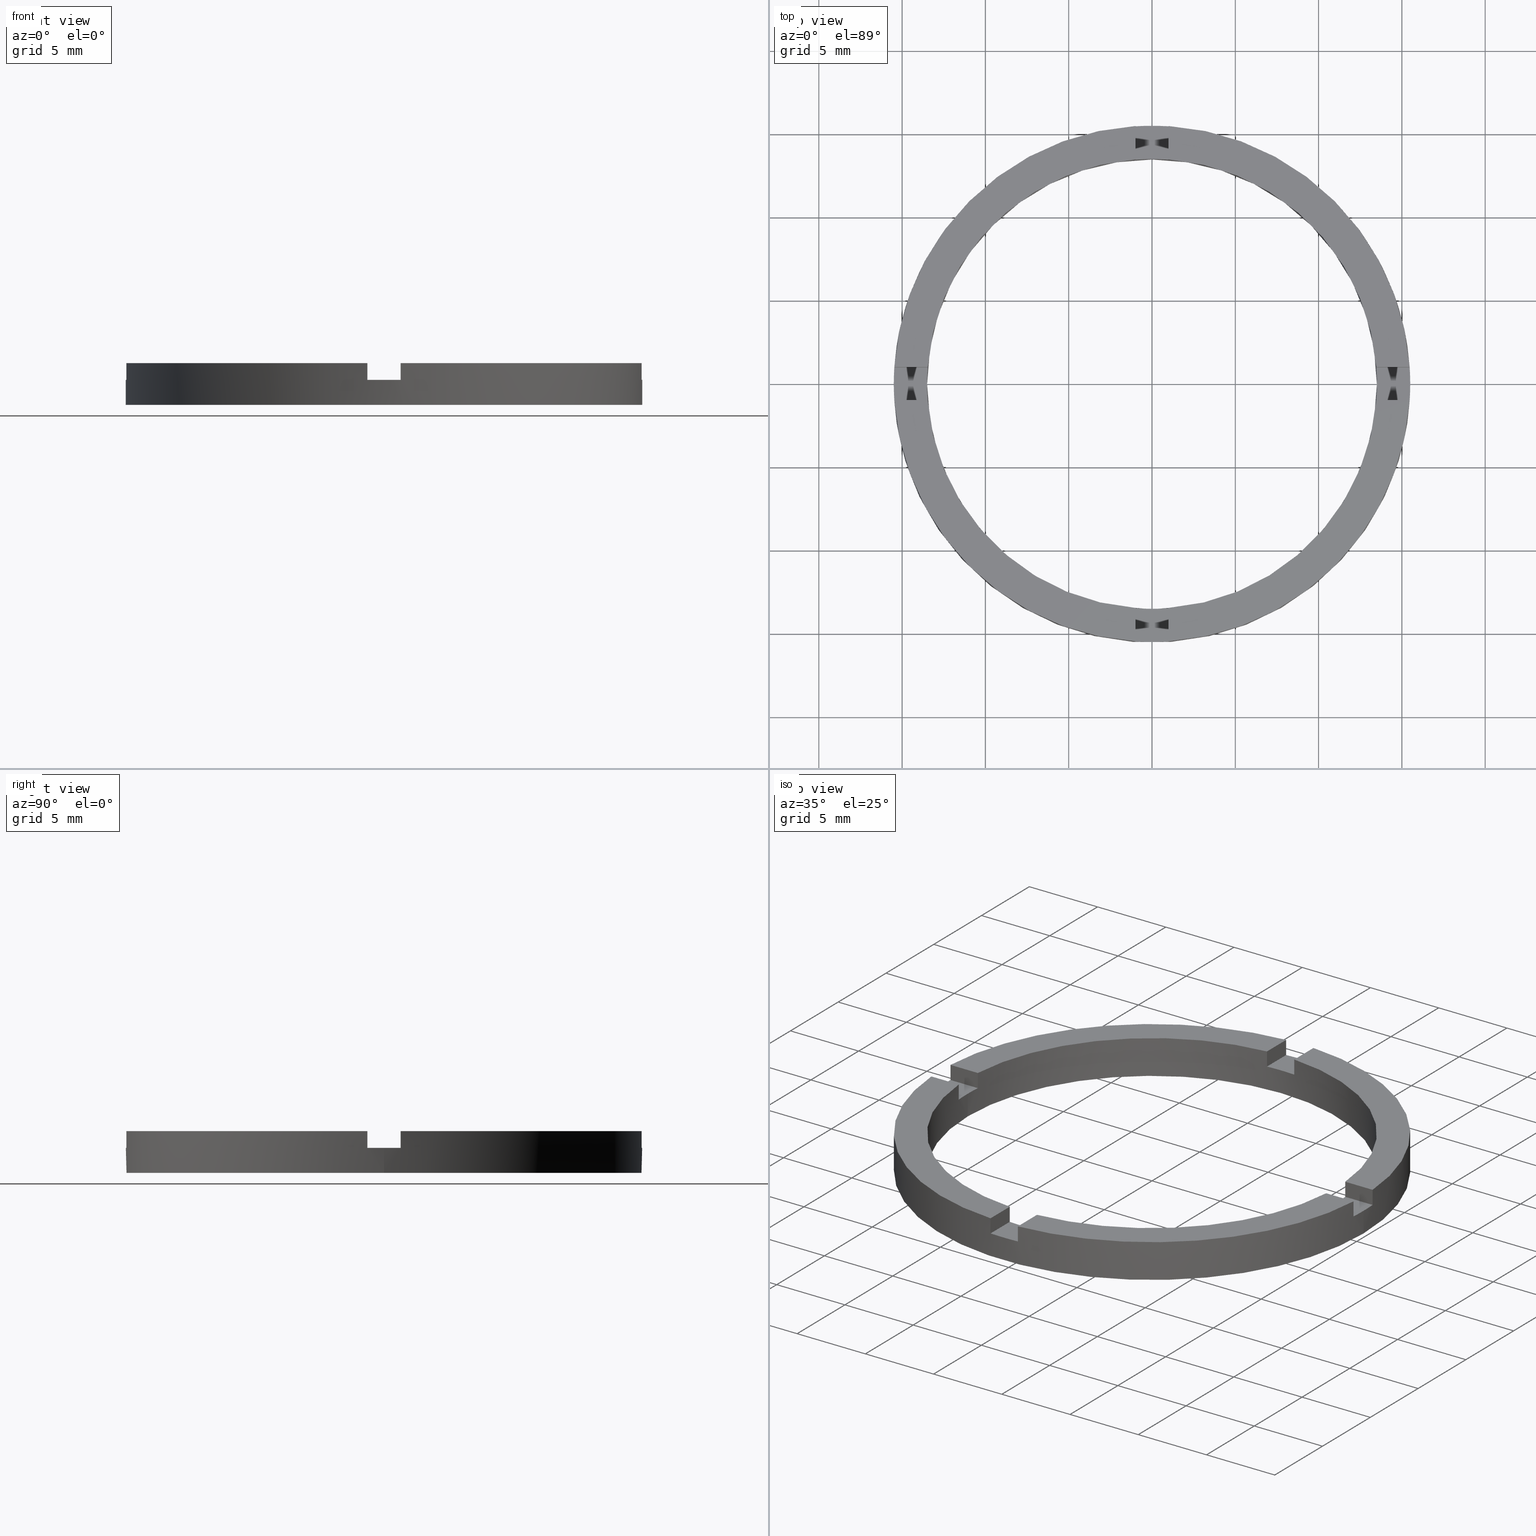
[diagram: canonical four-view strip — front | top / right | iso, engineering-drawing reading convention]
A machine part, canonical four-view strip (front | top / right | iso — engineering-drawing reading convention). The complete STEP part file that produces these views, byte-faithful:
ISO-10303-21;
HEADER;
FILE_DESCRIPTION (( 'STEP AP203' ),
    '1' );
FILE_NAME ('514069.step',
    '2024-12-26T02:34:36',
    ( 'MSI' ),
    ( '' ),
    'SwSTEP 2.0',
    'SolidWorks 2020',
    '' );
FILE_SCHEMA (( 'CONFIG_CONTROL_DESIGN' ));
ENDSEC;

DATA;
#1 = LINE ( 'NONE', #296, #528 ) ;
#2 = VECTOR ( 'NONE', #37, 1000.000000000000000 ) ;
#3 = CARTESIAN_POINT ( 'NONE',  ( -1.000000000000024869, 15.46770829825801741, 2.500000000000000000 ) ) ;
#4 = VECTOR ( 'NONE', #183, 1000.000000000000000 ) ;
#5 = CARTESIAN_POINT ( 'NONE',  ( 13.50000000000000000, 1.653273178848926867E-15, 2.500000000000000000 ) ) ;
#6 = CIRCLE ( 'NONE', #447, 13.50000000000000000 ) ;
#7 = VECTOR ( 'NONE', #519, 1000.000000000000000 ) ;
#8 = DIRECTION ( 'NONE',  ( -0.000000000000000000, -0.000000000000000000, -1.000000000000000000 ) ) ;
#9 = LINE ( 'NONE', #3, #2 ) ;
#10 = DIRECTION ( 'NONE',  ( -0.000000000000000000, -1.000000000000000000, -0.000000000000000000 ) ) ;
#11 = LINE ( 'NONE', #575, #534 ) ;
#12 = CARTESIAN_POINT ( 'NONE',  ( 13.46291201783624736, -1.000000000000159206, 2.500000000000000000 ) ) ;
#13 = FACE_OUTER_BOUND ( 'NONE', #340, .T. ) ;
#14 = AXIS2_PLACEMENT_3D ( 'NONE', #765, #489, #481 ) ;
#15 = CARTESIAN_POINT ( 'NONE',  ( 15.46770829825800853, -1.000000000000159206, 2.500000000000000000 ) ) ;
#16 = DIRECTION ( 'NONE',  ( 1.000000000000000000, 0.000000000000000000, 0.000000000000000000 ) ) ;
#17 = DIRECTION ( 'NONE',  ( -0.000000000000000000, -0.000000000000000000, -1.000000000000000000 ) ) ;
#18 = DIRECTION ( 'NONE',  ( -1.000000000000000000, -1.734723475976807094E-16, 0.000000000000000000 ) ) ;
#19 = PRODUCT_RELATED_PRODUCT_CATEGORY ( 'detail', '', ( #34 ) ) ;
#20 = CARTESIAN_POINT ( 'NONE',  ( -15.46770829825802096, 0.9999999999999767963, 1.500000000000000000 ) ) ;
#21 = AXIS2_PLACEMENT_3D ( 'NONE', #297, #579, #352 ) ;
#22 = DIRECTION ( 'NONE',  ( 0.000000000000000000, 0.000000000000000000, 1.000000000000000000 ) ) ;
#23 = DIRECTION ( 'NONE',  ( -0.000000000000000000, -0.000000000000000000, -1.000000000000000000 ) ) ;
#24 = CARTESIAN_POINT ( 'NONE',  ( -13.46291201783625802, -1.000000000000023093, 2.500000000000000000 ) ) ;
#25 = CARTESIAN_POINT ( 'NONE',  ( 5.499999999999994671, 0.9999999999998404610, 2.500000000000000000 ) ) ;
#26 = ADVANCED_FACE ( 'NONE', ( #112 ), #207, .T. ) ;
#27 = DIRECTION ( 'NONE',  ( 1.000000000000000000, 4.336808689942017736E-17, 0.000000000000000000 ) ) ;
#28 = EDGE_CURVE ( 'NONE', #708, #363, #389, .T. ) ;
#29 = DIRECTION ( 'NONE',  ( 1.000000000000000000, 1.734723475976807094E-16, -0.000000000000000000 ) ) ;
#30 = AXIS2_PLACEMENT_3D ( 'NONE', #200, #254, #428 ) ;
#31 = DIRECTION ( 'NONE',  ( 1.000000000000000000, -0.000000000000000000, 0.000000000000000000 ) ) ;
#32 = EDGE_CURVE ( 'NONE', #67, #351, #114, .T. ) ;
#33 = CC_DESIGN_SECURITY_CLASSIFICATION ( #63, ( #512 ) ) ;
#34 = PRODUCT ( '514069', '514069', '', ( #515 ) ) ;
#35 = COORDINATED_UNIVERSAL_TIME_OFFSET ( 8, 0, .AHEAD. ) ;
#36 = CALENDAR_DATE ( 2024, 26, 12 ) ;
#37 = DIRECTION ( 'NONE',  ( -0.000000000000000000, -0.000000000000000000, -1.000000000000000000 ) ) ;
#38 = SHAPE_DEFINITION_REPRESENTATION ( #637, #688 ) ;
#39 = DIRECTION ( 'NONE',  ( -0.000000000000000000, -0.000000000000000000, -1.000000000000000000 ) ) ;
#40 = DIRECTION ( 'NONE',  ( -0.000000000000000000, 0.000000000000000000, 1.000000000000000000 ) ) ;
#41 = DIRECTION ( 'NONE',  ( -1.000000000000000000, 0.000000000000000000, 0.000000000000000000 ) ) ;
#42 = PLANE ( 'NONE',  #78 ) ;
#43 = CARTESIAN_POINT ( 'NONE',  ( 0.000000000000000000, 0.000000000000000000, 0.000000000000000000 ) ) ;
#44 = APPROVAL_PERSON_ORGANIZATION ( #314, #542, #153 ) ;
#45 = DIRECTION ( 'NONE',  ( -1.000000000000000000, -4.336808689942017736E-17, -0.000000000000000000 ) ) ;
#46 = APPROVAL_DATE_TIME ( #568, #542 ) ;
#47 = CARTESIAN_POINT ( 'NONE',  ( 0.9999999999998359090, -5.500000000000180300, 1.500000000000000000 ) ) ;
#48 = PERSON_AND_ORGANIZATION ( #82, #671 ) ;
#49 = CARTESIAN_POINT ( 'NONE',  ( 0.000000000000000000, 0.000000000000000000, 0.000000000000000000 ) ) ;
#50 = EDGE_CURVE ( 'NONE', #144, #79, #639, .T. ) ;
#51 = CALENDAR_DATE ( 2024, 26, 12 ) ;
#52 = DIRECTION ( 'NONE',  ( 0.000000000000000000, 0.000000000000000000, 1.000000000000000000 ) ) ;
#53 = CARTESIAN_POINT ( 'NONE',  ( -13.46291201783626157, 0.9999999999999770184, 1.500000000000000000 ) ) ;
#54 = CARTESIAN_POINT ( 'NONE',  ( 0.000000000000000000, 0.000000000000000000, 1.500000000000000000 ) ) ;
#55 = AXIS2_PLACEMENT_3D ( 'NONE', #188, #578, #437 ) ;
#56 = PERSON_AND_ORGANIZATION_ROLE ( 'creator' ) ;
#57 = PLANE ( 'NONE',  #495 ) ;
#58 = CARTESIAN_POINT ( 'NONE',  ( 0.000000000000000000, 0.000000000000000000, 0.000000000000000000 ) ) ;
#59 = DIRECTION ( 'NONE',  ( 0.000000000000000000, 0.000000000000000000, 1.000000000000000000 ) ) ;
#60 = AXIS2_PLACEMENT_3D ( 'NONE', #110, #103, #204 ) ;
#61 = CARTESIAN_POINT ( 'NONE',  ( 0.000000000000000000, 0.000000000000000000, 1.500000000000000000 ) ) ;
#62 = PERSON_AND_ORGANIZATION_ROLE ( 'design_supplier' ) ;
#63 = SECURITY_CLASSIFICATION ( '', '', #609 ) ;
#64 = DIRECTION ( 'NONE',  ( -1.000000000000000000, -1.301042606982605321E-16, 0.000000000000000000 ) ) ;
#65 = DIRECTION ( 'NONE',  ( 1.000000000000000000, 0.000000000000000000, -0.000000000000000000 ) ) ;
#66 = CARTESIAN_POINT ( 'NONE',  ( -5.500000000000185629, 0.9999999999999785727, 1.500000000000000000 ) ) ;
#67 = VERTEX_POINT ( 'NONE', #350 ) ;
#68 = AXIS2_PLACEMENT_3D ( 'NONE', #236, #440, #573 ) ;
#69 = CARTESIAN_POINT ( 'NONE',  ( 0.000000000000000000, 0.000000000000000000, 0.000000000000000000 ) ) ;
#70 = EDGE_LOOP ( 'NONE', ( #681, #615, #680, #133 ) ) ;
#71 = EDGE_CURVE ( 'NONE', #177, #67, #394, .T. ) ;
#72 = ORIENTED_EDGE ( 'NONE', *, *, #194, .F. ) ;
#73 = EDGE_CURVE ( 'NONE', #453, #596, #266, .T. ) ;
#74 = ORIENTED_EDGE ( 'NONE', *, *, #295, .F. ) ;
#75 = CLOSED_SHELL ( 'NONE', ( #118, #612, #520, #678, #130, #600, #364, #710, #223, #139, #226, #307, #557, #472, #279, #751, #374, #323, #108, #318, #26 ) ) ;
#76 = DIRECTION ( 'NONE',  ( 0.000000000000000000, 0.000000000000000000, 1.000000000000000000 ) ) ;
#77 = ORIENTED_EDGE ( 'NONE', *, *, #441, .F. ) ;
#78 = AXIS2_PLACEMENT_3D ( 'NONE', #736, #40, #497 ) ;
#79 = VERTEX_POINT ( 'NONE', #173 ) ;
#80 = ORIENTED_EDGE ( 'NONE', *, *, #263, .T. ) ;
#81 = ORIENTED_EDGE ( 'NONE', *, *, #553, .F. ) ;
#82 = PERSON ( 'δָ��', 'δָ��', 'δָ��', ('δָ��'), ('δָ��'), ('δָ��') ) ;
#83 = ORIENTED_EDGE ( 'NONE', *, *, #263, .F. ) ;
#84 = CARTESIAN_POINT ( 'NONE',  ( 0.000000000000000000, 0.000000000000000000, 1.500000000000000000 ) ) ;
#85 = VERTEX_POINT ( 'NONE', #101 ) ;
#86 = VERTEX_POINT ( 'NONE', #197 ) ;
#87 = EDGE_CURVE ( 'NONE', #85, #657, #277, .T. ) ;
#88 = ORIENTED_EDGE ( 'NONE', *, *, #295, .T. ) ;
#89 = ORIENTED_EDGE ( 'NONE', *, *, #122, .T. ) ;
#90 = ORIENTED_EDGE ( 'NONE', *, *, #475, .T. ) ;
#91 = DIRECTION ( 'NONE',  ( 0.000000000000000000, 0.000000000000000000, -1.000000000000000000 ) ) ;
#92 = ORIENTED_EDGE ( 'NONE', *, *, #773, .T. ) ;
#93 = ORIENTED_EDGE ( 'NONE', *, *, #441, .T. ) ;
#94 = DIRECTION ( 'NONE',  ( 0.000000000000000000, 1.000000000000000000, 0.000000000000000000 ) ) ;
#95 = ORIENTED_EDGE ( 'NONE', *, *, #71, .T. ) ;
#96 = CARTESIAN_POINT ( 'NONE',  ( 0.000000000000000000, 0.000000000000000000, 2.500000000000000000 ) ) ;
#97 = APPROVAL ( #228, 'δָ��' ) ;
#98 = VERTEX_POINT ( 'NONE', #343 ) ;
#99 = CARTESIAN_POINT ( 'NONE',  ( 0.000000000000000000, 0.000000000000000000, 1.500000000000000000 ) ) ;
#100 = EDGE_CURVE ( 'NONE', #620, #453, #1, .T. ) ;
#101 = CARTESIAN_POINT ( 'NONE',  ( -13.46291201783626157, 0.9999999999999770184, 2.500000000000000000 ) ) ;
#102 = ORIENTED_EDGE ( 'NONE', *, *, #517, .F. ) ;
#103 = DIRECTION ( 'NONE',  ( 0.000000000000000000, 0.000000000000000000, 1.000000000000000000 ) ) ;
#104 = AXIS2_PLACEMENT_3D ( 'NONE', #49, #748, #499 ) ;
#105 = ORIENTED_EDGE ( 'NONE', *, *, #122, .F. ) ;
#106 = EDGE_LOOP ( 'NONE', ( #716, #668, #689, #455 ) ) ;
#107 = ORIENTED_EDGE ( 'NONE', *, *, #100, .F. ) ;
#108 = ADVANCED_FACE ( 'NONE', ( #533 ), #244, .F. ) ;
#109 = ORIENTED_EDGE ( 'NONE', *, *, #73, .F. ) ;
#110 = CARTESIAN_POINT ( 'NONE',  ( 0.000000000000000000, 0.000000000000000000, 2.500000000000000000 ) ) ;
#111 = DIRECTION ( 'NONE',  ( 1.000000000000000000, 1.301042606982605321E-16, 0.000000000000000000 ) ) ;
#112 = FACE_OUTER_BOUND ( 'NONE', #436, .T. ) ;
#113 = ORIENTED_EDGE ( 'NONE', *, *, #729, .F. ) ;
#114 = LINE ( 'NONE', #116, #393 ) ;
#115 = EDGE_CURVE ( 'NONE', #459, #351, #280, .T. ) ;
#116 = CARTESIAN_POINT ( 'NONE',  ( -1.000000000000162759, -15.46770829825800853, 2.500000000000000000 ) ) ;
#117 = CC_DESIGN_PERSON_AND_ORGANIZATION_ASSIGNMENT ( #157, #691, ( #34 ) ) ;
#118 = ADVANCED_FACE ( 'NONE', ( #13 ), #531, .F. ) ;
#119 = CARTESIAN_POINT ( 'NONE',  ( 0.000000000000000000, 0.000000000000000000, 0.000000000000000000 ) ) ;
#120 = DIRECTION ( 'NONE',  ( 0.000000000000000000, 0.000000000000000000, 1.000000000000000000 ) ) ;
#121 = VECTOR ( 'NONE', #299, 1000.000000000000000 ) ;
#122 = EDGE_CURVE ( 'NONE', #346, #86, #9, .T. ) ;
#123 = LINE ( 'NONE', #25, #649 ) ;
#124 = DIRECTION ( 'NONE',  ( 0.000000000000000000, 0.000000000000000000, 1.000000000000000000 ) ) ;
#125 = EDGE_CURVE ( 'NONE', #187, #413, #11, .T. ) ;
#126 = ORIENTED_EDGE ( 'NONE', *, *, #392, .T. ) ;
#127 = DIRECTION ( 'NONE',  ( 0.000000000000000000, 0.000000000000000000, 1.000000000000000000 ) ) ;
#128 = LOCAL_TIME ( 10, 34, 36.00000000000000000, #399 ) ;
#129 = ORIENTED_EDGE ( 'NONE', *, *, #532, .F. ) ;
#130 = ADVANCED_FACE ( 'NONE', ( #523 ), #540, .T. ) ;
#131 = VECTOR ( 'NONE', #321, 1000.000000000000000 ) ;
#132 = ORIENTED_EDGE ( 'NONE', *, *, #753, .F. ) ;
#133 = ORIENTED_EDGE ( 'NONE', *, *, #628, .F. ) ;
#134 = APPROVAL_DATE_TIME ( #404, #595 ) ;
#135 = ORIENTED_EDGE ( 'NONE', *, *, #673, .T. ) ;
#136 = PLANE ( 'NONE',  #407 ) ;
#137 = EDGE_CURVE ( 'NONE', #98, #380, #269, .T. ) ;
#138 = ORIENTED_EDGE ( 'NONE', *, *, #353, .F. ) ;
#139 = ADVANCED_FACE ( 'NONE', ( #527 ), #611, .F. ) ;
#140 = CARTESIAN_POINT ( 'NONE',  ( 5.499999999999994671, 0.9999999999998404610, 1.500000000000000000 ) ) ;
#141 = LINE ( 'NONE', #282, #131 ) ;
#142 = ORIENTED_EDGE ( 'NONE', *, *, #304, .F. ) ;
#143 = CIRCLE ( 'NONE', #172, 15.50000000000000000 ) ;
#144 = VERTEX_POINT ( 'NONE', #53 ) ;
#145 = CARTESIAN_POINT ( 'NONE',  ( 13.50000000000000000, 1.653273178848926867E-15, 1.500000000000000000 ) ) ;
#146 = ORIENTED_EDGE ( 'NONE', *, *, #741, .T. ) ;
#147 = VERTEX_POINT ( 'NONE', #369 ) ;
#148 = ORIENTED_EDGE ( 'NONE', *, *, #532, .T. ) ;
#149 = VECTOR ( 'NONE', #18, 1000.000000000000000 ) ;
#150 = ORIENTED_EDGE ( 'NONE', *, *, #50, .F. ) ;
#151 = DIRECTION ( 'NONE',  ( -0.000000000000000000, 0.000000000000000000, 1.000000000000000000 ) ) ;
#152 = ORIENTED_EDGE ( 'NONE', *, *, #720, .T. ) ;
#153 = APPROVAL_ROLE ( '' ) ;
#154 = VERTEX_POINT ( 'NONE', #24 ) ;
#155 = ORIENTED_EDGE ( 'NONE', *, *, #673, .F. ) ;
#156 = ORIENTED_EDGE ( 'NONE', *, *, #709, .T. ) ;
#157 = PERSON_AND_ORGANIZATION ( #82, #671 ) ;
#158 = LINE ( 'NONE', #755, #646 ) ;
#159 = ORIENTED_EDGE ( 'NONE', *, *, #570, .T. ) ;
#160 = EDGE_LOOP ( 'NONE', ( #622, #699, #113, #83 ) ) ;
#161 = CARTESIAN_POINT ( 'NONE',  ( 5.499999999999994671, -1.000000000000159650, 2.500000000000000000 ) ) ;
#162 = ORIENTED_EDGE ( 'NONE', *, *, #655, .T. ) ;
#163 = CIRCLE ( 'NONE', #302, 13.50000000000000000 ) ;
#164 = ORIENTED_EDGE ( 'NONE', *, *, #621, .F. ) ;
#165 = ORIENTED_EDGE ( 'NONE', *, *, #194, .T. ) ;
#166 = ORIENTED_EDGE ( 'NONE', *, *, #388, .F. ) ;
#167 = DIRECTION ( 'NONE',  ( 0.000000000000000000, 0.000000000000000000, 1.000000000000000000 ) ) ;
#168 = ORIENTED_EDGE ( 'NONE', *, *, #137, .T. ) ;
#169 = EDGE_CURVE ( 'NONE', #693, #438, #6, .T. ) ;
#170 = ORIENTED_EDGE ( 'NONE', *, *, #292, .F. ) ;
#171 = ORIENTED_EDGE ( 'NONE', *, *, #607, .T. ) ;
#172 = AXIS2_PLACEMENT_3D ( 'NONE', #398, #624, #772 ) ;
#173 = CARTESIAN_POINT ( 'NONE',  ( -13.50000000000000000, 0.000000000000000000, 1.500000000000000000 ) ) ;
#174 = VERTEX_POINT ( 'NONE', #220 ) ;
#175 = APPROVAL_STATUS ( 'not_yet_approved' ) ;
#176 = LINE ( 'NONE', #367, #704 ) ;
#177 = VERTEX_POINT ( 'NONE', #694 ) ;
#178 = ORIENTED_EDGE ( 'NONE', *, *, #28, .T. ) ;
#179 = ORIENTED_EDGE ( 'NONE', *, *, #561, .F. ) ;
#180 = EDGE_CURVE ( 'NONE', #346, #657, #271, .T. ) ;
#181 = ORIENTED_EDGE ( 'NONE', *, *, #621, .T. ) ;
#182 = ORIENTED_EDGE ( 'NONE', *, *, #137, .F. ) ;
#183 = DIRECTION ( 'NONE',  ( 0.000000000000000000, 0.000000000000000000, 1.000000000000000000 ) ) ;
#184 = VERTEX_POINT ( 'NONE', #145 ) ;
#185 = EDGE_LOOP ( 'NONE', ( #409, #654, #354, #126 ) ) ;
#186 = VERTEX_POINT ( 'NONE', #390 ) ;
#187 = VERTEX_POINT ( 'NONE', #283 ) ;
#188 = CARTESIAN_POINT ( 'NONE',  ( 0.000000000000000000, 0.000000000000000000, 2.500000000000000000 ) ) ;
#189 = ORIENTED_EDGE ( 'NONE', *, *, #773, .F. ) ;
#190 = CARTESIAN_POINT ( 'NONE',  ( 0.9999999999999751310, 15.46770829825802096, 2.500000000000000000 ) ) ;
#191 = LINE ( 'NONE', #359, #718 ) ;
#192 = ORIENTED_EDGE ( 'NONE', *, *, #607, .F. ) ;
#193 = DIRECTION ( 'NONE',  ( 0.000000000000000000, 0.000000000000000000, 1.000000000000000000 ) ) ;
#194 = EDGE_CURVE ( 'NONE', #632, #456, #530, .T. ) ;
#195 = ORIENTED_EDGE ( 'NONE', *, *, #482, .T. ) ;
#196 = DIRECTION ( 'NONE',  ( 0.000000000000000000, 0.000000000000000000, 1.000000000000000000 ) ) ;
#197 = CARTESIAN_POINT ( 'NONE',  ( -1.000000000000024869, 15.46770829825801741, 1.500000000000000000 ) ) ;
#198 = CIRCLE ( 'NONE', #240, 15.50000000000000000 ) ;
#199 = DIRECTION ( 'NONE',  ( -0.000000000000000000, -0.000000000000000000, -1.000000000000000000 ) ) ;
#200 = CARTESIAN_POINT ( 'NONE',  ( 0.000000000000000000, 0.000000000000000000, 2.500000000000000000 ) ) ;
#201 = CARTESIAN_POINT ( 'NONE',  ( -15.50000000000000000, 0.000000000000000000, 2.500000000000000000 ) ) ;
#202 = CYLINDRICAL_SURFACE ( 'NONE', #21, 15.50000000000000000 ) ;
#203 = EDGE_CURVE ( 'NONE', #187, #626, #235, .T. ) ;
#204 = DIRECTION ( 'NONE',  ( 1.000000000000000000, 0.000000000000000000, 0.000000000000000000 ) ) ;
#205 = CYLINDRICAL_SURFACE ( 'NONE', #281, 15.50000000000000000 ) ;
#206 = AXIS2_PLACEMENT_3D ( 'NONE', #309, #603, #268 ) ;
#207 = PLANE ( 'NONE',  #334 ) ;
#208 = VECTOR ( 'NONE', #250, 1000.000000000000000 ) ;
#209 = CARTESIAN_POINT ( 'NONE',  ( 0.000000000000000000, 0.000000000000000000, 2.500000000000000000 ) ) ;
#210 = VECTOR ( 'NONE', #39, 1000.000000000000000 ) ;
#211 = CARTESIAN_POINT ( 'NONE',  ( 5.499999999999994671, -1.000000000000159650, 1.500000000000000000 ) ) ;
#212 = DIRECTION ( 'NONE',  ( 1.000000000000000000, 0.000000000000000000, 0.000000000000000000 ) ) ;
#213 = CARTESIAN_POINT ( 'NONE',  ( -1.000000000000024869, 13.46291201783625802, 1.500000000000000000 ) ) ;
#214 = FACE_BOUND ( 'NONE', #439, .T. ) ;
#215 = CARTESIAN_POINT ( 'NONE',  ( 0.000000000000000000, 0.000000000000000000, 1.500000000000000000 ) ) ;
#216 = EDGE_CURVE ( 'NONE', #184, #338, #239, .T. ) ;
#217 = DIRECTION ( 'NONE',  ( 1.000000000000000000, 0.000000000000000000, 0.000000000000000000 ) ) ;
#218 = DIRECTION ( 'NONE',  ( 4.336808689942017736E-17, -1.000000000000000000, 0.000000000000000000 ) ) ;
#219 =( NAMED_UNIT ( * ) SI_UNIT ( $, .STERADIAN. ) SOLID_ANGLE_UNIT ( ) );
#220 = CARTESIAN_POINT ( 'NONE',  ( -15.46770829825801741, -1.000000000000023315, 2.500000000000000000 ) ) ;
#221 = DIRECTION ( 'NONE',  ( -0.000000000000000000, -0.000000000000000000, -1.000000000000000000 ) ) ;
#222 = VECTOR ( 'NONE', #22, 1000.000000000000000 ) ;
#223 = ADVANCED_FACE ( 'NONE', ( #232 ), #759, .F. ) ;
#224 = DATE_TIME_ROLE ( 'classification_date' ) ;
#225 = DIRECTION ( 'NONE',  ( -0.000000000000000000, -1.000000000000000000, -0.000000000000000000 ) ) ;
#226 = ADVANCED_FACE ( 'NONE', ( #767 ), #770, .F. ) ;
#227 = DIRECTION ( 'NONE',  ( 1.000000000000000000, 0.000000000000000000, 0.000000000000000000 ) ) ;
#228 = APPROVAL_STATUS ( 'not_yet_approved' ) ;
#229 = PLANE ( 'NONE',  #415 ) ;
#230 = CARTESIAN_POINT ( 'NONE',  ( -1.000000000000164091, -5.500000000000180300, 1.500000000000000000 ) ) ;
#231 = APPROVAL_ROLE ( '' ) ;
#232 = FACE_OUTER_BOUND ( 'NONE', #690, .T. ) ;
#233 = COORDINATED_UNIVERSAL_TIME_OFFSET ( 8, 0, .AHEAD. ) ;
#234 = CARTESIAN_POINT ( 'NONE',  ( 13.46291201783627045, 0.9999999999998409050, 1.500000000000000000 ) ) ;
#235 = LINE ( 'NONE', #211, #744 ) ;
#236 = CARTESIAN_POINT ( 'NONE',  ( -1.000000000000024869, 5.500000000000000000, 1.500000000000000000 ) ) ;
#237 = AXIS2_PLACEMENT_3D ( 'NONE', #230, #64, #521 ) ;
#238 = PERSON_AND_ORGANIZATION ( #82, #671 ) ;
#239 = CIRCLE ( 'NONE', #725, 13.50000000000000000 ) ;
#240 = AXIS2_PLACEMENT_3D ( 'NONE', #674, #312, #752 ) ;
#241 = CARTESIAN_POINT ( 'NONE',  ( 0.000000000000000000, 0.000000000000000000, 2.500000000000000000 ) ) ;
#242 = LINE ( 'NONE', #766, #253 ) ;
#243 = EDGE_CURVE ( 'NONE', #450, #632, #762, .T. ) ;
#244 = PLANE ( 'NONE',  #68 ) ;
#245 = LINE ( 'NONE', #161, #506 ) ;
#246 = CARTESIAN_POINT ( 'NONE',  ( -15.46770829825802096, 0.9999999999999767963, 2.500000000000000000 ) ) ;
#247 = AXIS2_PLACEMENT_3D ( 'NONE', #241, #490, #537 ) ;
#248 = LINE ( 'NONE', #719, #518 ) ;
#249 = VECTOR ( 'NONE', #29, 1000.000000000000000 ) ;
#250 = DIRECTION ( 'NONE',  ( -1.301042606982605321E-16, 1.000000000000000000, -0.000000000000000000 ) ) ;
#251 = EDGE_CURVE ( 'NONE', #413, #684, #245, .T. ) ;
#252 = EDGE_CURVE ( 'NONE', #400, #596, #248, .T. ) ;
#253 = VECTOR ( 'NONE', #347, 1000.000000000000000 ) ;
#254 = DIRECTION ( 'NONE',  ( 0.000000000000000000, 0.000000000000000000, 1.000000000000000000 ) ) ;
#255 = FACE_OUTER_BOUND ( 'NONE', #692, .T. ) ;
#256 = FACE_OUTER_BOUND ( 'NONE', #613, .T. ) ;
#257 = CARTESIAN_POINT ( 'NONE',  ( -1.000000000000024869, 13.46291201783625802, 2.500000000000000000 ) ) ;
#258 = VECTOR ( 'NONE', #727, 1000.000000000000000 ) ;
#259 = FACE_OUTER_BOUND ( 'NONE', #706, .T. ) ;
#260 = EDGE_CURVE ( 'NONE', #605, #675, #500, .T. ) ;
#261 = DIRECTION ( 'NONE',  ( 0.000000000000000000, 0.000000000000000000, 1.000000000000000000 ) ) ;
#262 = DIRECTION ( 'NONE',  ( 1.000000000000000000, 0.000000000000000000, 0.000000000000000000 ) ) ;
#263 = EDGE_CURVE ( 'NONE', #360, #186, #242, .T. ) ;
#264 = CARTESIAN_POINT ( 'NONE',  ( 0.000000000000000000, 0.000000000000000000, 2.500000000000000000 ) ) ;
#265 = DIRECTION ( 'NONE',  ( -0.000000000000000000, -0.000000000000000000, -1.000000000000000000 ) ) ;
#266 = LINE ( 'NONE', #190, #4 ) ;
#267 = DESIGN_CONTEXT ( 'detailed design', #387, 'design' ) ;
#268 = DIRECTION ( 'NONE',  ( 1.000000000000000000, 0.000000000000000000, -0.000000000000000000 ) ) ;
#269 = LINE ( 'NONE', #201, #524 ) ;
#270 = CARTESIAN_POINT ( 'NONE',  ( 5.499999999999994671, -1.000000000000159650, 1.500000000000000000 ) ) ;
#271 = CIRCLE ( 'NONE', #648, 15.50000000000000000 ) ;
#272 = AXIS2_PLACEMENT_3D ( 'NONE', #597, #276, #556 ) ;
#273 = DIRECTION ( 'NONE',  ( 0.000000000000000000, -0.000000000000000000, 1.000000000000000000 ) ) ;
#274 = VECTOR ( 'NONE', #724, 1000.000000000000000 ) ;
#275 = EDGE_CURVE ( 'NONE', #86, #363, #774, .T. ) ;
#276 = DIRECTION ( 'NONE',  ( 0.000000000000000000, 0.000000000000000000, 1.000000000000000000 ) ) ;
#277 = LINE ( 'NONE', #498, #284 ) ;
#278 = UNCERTAINTY_MEASURE_WITH_UNIT (LENGTH_MEASURE( 1.000000000000000082E-05 ), #382, 'distance_accuracy_value', 'NONE');
#279 = ADVANCED_FACE ( 'NONE', ( #255 ), #42, .T. ) ;
#280 = LINE ( 'NONE', #337, #274 ) ;
#281 = AXIS2_PLACEMENT_3D ( 'NONE', #264, #8, #41 ) ;
#282 = CARTESIAN_POINT ( 'NONE',  ( 15.46770829825800853, -1.000000000000159206, 2.500000000000000000 ) ) ;
#283 = CARTESIAN_POINT ( 'NONE',  ( 13.46291201783624736, -1.000000000000159206, 1.500000000000000000 ) ) ;
#284 = VECTOR ( 'NONE', #333, 1000.000000000000000 ) ;
#285 = DIRECTION ( 'NONE',  ( -1.000000000000000000, -4.336808689942017736E-17, -0.000000000000000000 ) ) ;
#286 = CC_DESIGN_DATE_AND_TIME_ASSIGNMENT ( #319, #224, ( #63 ) ) ;
#287 = AXIS2_PLACEMENT_3D ( 'NONE', #505, #396, #714 ) ;
#288 = PERSON_AND_ORGANIZATION_ROLE ( 'creator' ) ;
#289 = CARTESIAN_POINT ( 'NONE',  ( 0.9999999999999751310, 13.46291201783626335, 2.500000000000000000 ) ) ;
#290 = DIRECTION ( 'NONE',  ( 1.000000000000000000, 4.336808689942017736E-17, 0.000000000000000000 ) ) ;
#291 = CARTESIAN_POINT ( 'NONE',  ( -1.000000000000162981, -13.46291201783624736, 2.500000000000000000 ) ) ;
#292 = EDGE_CURVE ( 'NONE', #631, #98, #502, .T. ) ;
#293 = DIRECTION ( 'NONE',  ( 1.000000000000000000, 0.000000000000000000, 0.000000000000000000 ) ) ;
#294 = DIRECTION ( 'NONE',  ( 1.000000000000000000, 0.000000000000000000, -0.000000000000000000 ) ) ;
#295 = EDGE_CURVE ( 'NONE', #450, #684, #771, .T. ) ;
#296 = CARTESIAN_POINT ( 'NONE',  ( 0.9999999999999751310, 5.500000000000000000, 1.500000000000000000 ) ) ;
#297 = CARTESIAN_POINT ( 'NONE',  ( 0.000000000000000000, 0.000000000000000000, 2.500000000000000000 ) ) ;
#298 = CC_DESIGN_DATE_AND_TIME_ASSIGNMENT ( #493, #414, ( #328 ) ) ;
#299 = DIRECTION ( 'NONE',  ( 1.301042606982605321E-16, -1.000000000000000000, 0.000000000000000000 ) ) ;
#300 = CARTESIAN_POINT ( 'NONE',  ( -13.46291201783625802, -1.000000000000023093, 1.500000000000000000 ) ) ;
#301 = DIRECTION ( 'NONE',  ( 1.000000000000000000, 0.000000000000000000, 0.000000000000000000 ) ) ;
#302 = AXIS2_PLACEMENT_3D ( 'NONE', #683, #52, #217 ) ;
#303 = PLANE ( 'NONE',  #546 ) ;
#304 = EDGE_CURVE ( 'NONE', #453, #86, #501, .T. ) ;
#305 = CARTESIAN_POINT ( 'NONE',  ( 15.50000000000000000, 1.898202538678397557E-15, 0.000000000000000000 ) ) ;
#306 = COORDINATED_UNIVERSAL_TIME_OFFSET ( 8, 0, .AHEAD. ) ;
#307 = ADVANCED_FACE ( 'NONE', ( #511 ), #623, .T. ) ;
#308 = CARTESIAN_POINT ( 'NONE',  ( -15.46770829825801741, -1.000000000000023315, 1.500000000000000000 ) ) ;
#309 = CARTESIAN_POINT ( 'NONE',  ( 0.000000000000000000, 0.000000000000000000, 2.500000000000000000 ) ) ;
#310 = DATE_AND_TIME ( #51, #326 ) ;
#311 = EDGE_CURVE ( 'NONE', #154, #459, #776, .T. ) ;
#312 = DIRECTION ( 'NONE',  ( 0.000000000000000000, 0.000000000000000000, 1.000000000000000000 ) ) ;
#313 = DIRECTION ( 'NONE',  ( 1.000000000000000000, 1.734723475976807094E-16, 0.000000000000000000 ) ) ;
#314 = PERSON_AND_ORGANIZATION ( #82, #671 ) ;
#315 = APPROVAL_DATE_TIME ( #310, #97 ) ;
#316 = DIRECTION ( 'NONE',  ( -4.336808689942017736E-17, 1.000000000000000000, 0.000000000000000000 ) ) ;
#317 = DIRECTION ( 'NONE',  ( -0.000000000000000000, -0.000000000000000000, -1.000000000000000000 ) ) ;
#318 = ADVANCED_FACE ( 'NONE', ( #256 ), #332, .F. ) ;
#319 = DATE_AND_TIME ( #36, #574 ) ;
#320 = APPLICATION_PROTOCOL_DEFINITION ( 'international standard', 'config_control_design', 1994, #387 ) ;
#321 = DIRECTION ( 'NONE',  ( 0.000000000000000000, 0.000000000000000000, 1.000000000000000000 ) ) ;
#322 = AXIS2_PLACEMENT_3D ( 'NONE', #61, #151, #227 ) ;
#323 = ADVANCED_FACE ( 'NONE', ( #513 ), #418, .T. ) ;
#324 = CARTESIAN_POINT ( 'NONE',  ( -5.500000000000185629, -1.000000000000021538, 1.500000000000000000 ) ) ;
#325 = CARTESIAN_POINT ( 'NONE',  ( 0.9999999999998369082, -13.46291201783627045, 1.500000000000000000 ) ) ;
#326 = LOCAL_TIME ( 10, 34, 36.00000000000000000, #233 ) ;
#327 = DIRECTION ( 'NONE',  ( 0.000000000000000000, 1.000000000000000000, 0.000000000000000000 ) ) ;
#328 = PRODUCT_DEFINITION ( 'δ֪', '', #512, #267 ) ;
#329 = PLANE ( 'NONE',  #237 ) ;
#330 = APPROVAL_STATUS ( 'not_yet_approved' ) ;
#331 = AXIS2_PLACEMENT_3D ( 'NONE', #468, #127, #509 ) ;
#332 = PLANE ( 'NONE',  #738 ) ;
#333 = DIRECTION ( 'NONE',  ( -1.000000000000000000, -1.734723475976807094E-16, 0.000000000000000000 ) ) ;
#334 = AXIS2_PLACEMENT_3D ( 'NONE', #215, #357, #587 ) ;
#335 = EDGE_CURVE ( 'NONE', #174, #154, #777, .T. ) ;
#336 = ORIENTED_EDGE ( 'NONE', *, *, #100, .T. ) ;
#337 = CARTESIAN_POINT ( 'NONE',  ( -1.000000000000164091, -5.500000000000180300, 2.500000000000000000 ) ) ;
#338 = VERTEX_POINT ( 'NONE', #234 ) ;
#339 = DIRECTION ( 'NONE',  ( 0.000000000000000000, 0.000000000000000000, 1.000000000000000000 ) ) ;
#340 = EDGE_LOOP ( 'NONE', ( #90, #146, #627, #702, #386, #102, #661, #166, #618, #594, #148, #713 ) ) ;
#341 = ORIENTED_EDGE ( 'NONE', *, *, #32, .T. ) ;
#342 = EDGE_LOOP ( 'NONE', ( #589, #129, #155, #88 ) ) ;
#343 = CARTESIAN_POINT ( 'NONE',  ( -15.50000000000000000, 0.000000000000000000, 1.500000000000000000 ) ) ;
#344 = ORIENTED_EDGE ( 'NONE', *, *, #561, .T. ) ;
#345 = ORIENTED_EDGE ( 'NONE', *, *, #260, .T. ) ;
#346 = VERTEX_POINT ( 'NONE', #487 ) ;
#347 = DIRECTION ( 'NONE',  ( -0.000000000000000000, -0.000000000000000000, -1.000000000000000000 ) ) ;
#348 = EDGE_LOOP ( 'NONE', ( #189, #355, #614, #192 ) ) ;
#349 = AXIS2_PLACEMENT_3D ( 'NONE', #69, #167, #763 ) ;
#350 = CARTESIAN_POINT ( 'NONE',  ( -1.000000000000162759, -15.46770829825800853, 1.500000000000000000 ) ) ;
#351 = VERTEX_POINT ( 'NONE', #781 ) ;
#352 = DIRECTION ( 'NONE',  ( -1.000000000000000000, 0.000000000000000000, 0.000000000000000000 ) ) ;
#353 = EDGE_CURVE ( 'NONE', #620, #400, #516, .T. ) ;
#354 = ORIENTED_EDGE ( 'NONE', *, *, #335, .F. ) ;
#355 = ORIENTED_EDGE ( 'NONE', *, *, #180, .T. ) ;
#356 = ORIENTED_EDGE ( 'NONE', *, *, #353, .T. ) ;
#357 = DIRECTION ( 'NONE',  ( 0.000000000000000000, -0.000000000000000000, 1.000000000000000000 ) ) ;
#358 = ORIENTED_EDGE ( 'NONE', *, *, #709, .F. ) ;
#359 = CARTESIAN_POINT ( 'NONE',  ( -13.46291201783626157, 0.9999999999999770184, 2.500000000000000000 ) ) ;
#360 = VERTEX_POINT ( 'NONE', #698 ) ;
#361 = ORIENTED_EDGE ( 'NONE', *, *, #538, .F. ) ;
#362 = CARTESIAN_POINT ( 'NONE',  ( 0.000000000000000000, 0.000000000000000000, 1.500000000000000000 ) ) ;
#363 = VERTEX_POINT ( 'NONE', #213 ) ;
#364 = ADVANCED_FACE ( 'NONE', ( #259, #214 ), #136, .F. ) ;
#365 = ORIENTED_EDGE ( 'NONE', *, *, #559, .F. ) ;
#366 = ORIENTED_EDGE ( 'NONE', *, *, #757, .F. ) ;
#367 = CARTESIAN_POINT ( 'NONE',  ( 15.50000000000000000, 1.898202538678397557E-15, 2.500000000000000000 ) ) ;
#368 = ORIENTED_EDGE ( 'NONE', *, *, #87, .T. ) ;
#369 = CARTESIAN_POINT ( 'NONE',  ( 15.50000000000000000, 1.898202538678397557E-15, 1.500000000000000000 ) ) ;
#370 = DIRECTION ( 'NONE',  ( 1.000000000000000000, 0.000000000000000000, 0.000000000000000000 ) ) ;
#371 = ORIENTED_EDGE ( 'NONE', *, *, #583, .F. ) ;
#372 = DIRECTION ( 'NONE',  ( 0.000000000000000000, 0.000000000000000000, 1.000000000000000000 ) ) ;
#373 = ORIENTED_EDGE ( 'NONE', *, *, #216, .T. ) ;
#374 = ADVANCED_FACE ( 'NONE', ( #730 ), #679, .F. ) ;
#375 = ORIENTED_EDGE ( 'NONE', *, *, #275, .F. ) ;
#376 = DIRECTION ( 'NONE',  ( -1.000000000000000000, -4.336808689942017736E-17, 0.000000000000000000 ) ) ;
#377 = EDGE_CURVE ( 'NONE', #631, #657, #478, .T. ) ;
#378 = CARTESIAN_POINT ( 'NONE',  ( -15.46770829825802096, 0.9999999999999767963, 2.500000000000000000 ) ) ;
#379 = EDGE_LOOP ( 'NONE', ( #92, #178, #375, #105 ) ) ;
#380 = VERTEX_POINT ( 'NONE', #467 ) ;
#381 = ORIENTED_EDGE ( 'NONE', *, *, #304, .T. ) ;
#382 =( LENGTH_UNIT ( ) NAMED_UNIT ( * ) SI_UNIT ( .MILLI., .METRE. ) );
#383 = CARTESIAN_POINT ( 'NONE',  ( 0.9999999999998359090, -5.500000000000180300, 1.500000000000000000 ) ) ;
#384 = ORIENTED_EDGE ( 'NONE', *, *, #492, .F. ) ;
#385 = DIRECTION ( 'NONE',  ( 1.000000000000000000, 4.336808689942017736E-17, 0.000000000000000000 ) ) ;
#386 = ORIENTED_EDGE ( 'NONE', *, *, #553, .T. ) ;
#387 = APPLICATION_CONTEXT ( 'configuration controlled 3d designs of mechanical parts and assemblies' ) ;
#388 = EDGE_CURVE ( 'NONE', #177, #459, #484, .T. ) ;
#389 = LINE ( 'NONE', #747, #636 ) ;
#390 = CARTESIAN_POINT ( 'NONE',  ( 15.46770829825802984, 0.9999999999998409050, 1.500000000000000000 ) ) ;
#391 = EDGE_LOOP ( 'NONE', ( #423, #162, #368, #670 ) ) ;
#392 = EDGE_CURVE ( 'NONE', #174, #351, #479, .T. ) ;
#393 = VECTOR ( 'NONE', #411, 1000.000000000000000 ) ;
#394 = LINE ( 'NONE', #782, #121 ) ;
#395 = DIRECTION ( 'NONE',  ( 0.000000000000000000, 0.000000000000000000, 1.000000000000000000 ) ) ;
#396 = DIRECTION ( 'NONE',  ( -0.000000000000000000, -0.000000000000000000, -1.000000000000000000 ) ) ;
#397 = ORIENTED_EDGE ( 'NONE', *, *, #720, .F. ) ;
#398 = CARTESIAN_POINT ( 'NONE',  ( 0.000000000000000000, 0.000000000000000000, 2.500000000000000000 ) ) ;
#399 = COORDINATED_UNIVERSAL_TIME_OFFSET ( 8, 0, .AHEAD. ) ;
#400 = VERTEX_POINT ( 'NONE', #606 ) ;
#401 = VECTOR ( 'NONE', #225, 1000.000000000000000 ) ;
#402 = EDGE_LOOP ( 'NONE', ( #642, #164, #616, #685 ) ) ;
#403 = CC_DESIGN_PERSON_AND_ORGANIZATION_ASSIGNMENT ( #576, #62, ( #512 ) ) ;
#404 = DATE_AND_TIME ( #429, #128 ) ;
#405 = FACE_OUTER_BOUND ( 'NONE', #697, .T. ) ;
#406 = ORIENTED_EDGE ( 'NONE', *, *, #388, .T. ) ;
#407 = AXIS2_PLACEMENT_3D ( 'NONE', #43, #124, #754 ) ;
#408 = PERSON_AND_ORGANIZATION ( #82, #671 ) ;
#409 = ORIENTED_EDGE ( 'NONE', *, *, #115, .F. ) ;
#410 = EDGE_LOOP ( 'NONE', ( #601, #406, #663, #432 ) ) ;
#411 = DIRECTION ( 'NONE',  ( 0.000000000000000000, 0.000000000000000000, 1.000000000000000000 ) ) ;
#412 = LINE ( 'NONE', #588, #149 ) ;
#413 = VERTEX_POINT ( 'NONE', #12 ) ;
#414 = DATE_TIME_ROLE ( 'creation_date' ) ;
#415 = AXIS2_PLACEMENT_3D ( 'NONE', #47, #111, #715 ) ;
#416 = EDGE_LOOP ( 'NONE', ( #152, #443, #665, #660, #598, #444 ) ) ;
#417 = VERTEX_POINT ( 'NONE', #758 ) ;
#418 = PLANE ( 'NONE',  #569 ) ;
#419 = PERSON_AND_ORGANIZATION ( #82, #671 ) ;
#420 = ORIENTED_EDGE ( 'NONE', *, *, #180, .F. ) ;
#421 = ORIENTED_EDGE ( 'NONE', *, *, #28, .F. ) ;
#422 = APPROVAL_PERSON_ORGANIZATION ( #419, #595, #231 ) ;
#423 = ORIENTED_EDGE ( 'NONE', *, *, #570, .F. ) ;
#424 = CARTESIAN_POINT ( 'NONE',  ( 0.000000000000000000, 0.000000000000000000, 1.500000000000000000 ) ) ;
#425 = CIRCLE ( 'NONE', #331, 15.50000000000000000 ) ;
#426 = CIRCLE ( 'NONE', #514, 13.50000000000000000 ) ;
#427 = ORIENTED_EDGE ( 'NONE', *, *, #243, .F. ) ;
#428 = DIRECTION ( 'NONE',  ( 1.000000000000000000, 0.000000000000000000, 0.000000000000000000 ) ) ;
#429 = CALENDAR_DATE ( 2024, 26, 12 ) ;
#430 = ORIENTED_EDGE ( 'NONE', *, *, #50, .T. ) ;
#431 = CIRCLE ( 'NONE', #104, 15.50000000000000000 ) ;
#432 = ORIENTED_EDGE ( 'NONE', *, *, #32, .F. ) ;
#433 = AXIS2_PLACEMENT_3D ( 'NONE', #66, #563, #483 ) ;
#434 = DIRECTION ( 'NONE',  ( -0.000000000000000000, -0.000000000000000000, -1.000000000000000000 ) ) ;
#435 = ORIENTED_EDGE ( 'NONE', *, *, #275, .T. ) ;
#436 = EDGE_LOOP ( 'NONE', ( #381, #435, #384, #336 ) ) ;
#437 = DIRECTION ( 'NONE',  ( 1.000000000000000000, 0.000000000000000000, 0.000000000000000000 ) ) ;
#438 = VERTEX_POINT ( 'NONE', #454 ) ;
#439 = EDGE_LOOP ( 'NONE', ( #634, #608 ) ) ;
#440 = DIRECTION ( 'NONE',  ( -1.000000000000000000, 0.000000000000000000, 0.000000000000000000 ) ) ;
#441 = EDGE_CURVE ( 'NONE', #67, #632, #735, .T. ) ;
#442 = DIRECTION ( 'NONE',  ( 1.000000000000000000, 0.000000000000000000, 0.000000000000000000 ) ) ;
#443 = ORIENTED_EDGE ( 'NONE', *, *, #753, .T. ) ;
#444 = ORIENTED_EDGE ( 'NONE', *, *, #203, .T. ) ;
#445 = VERTEX_POINT ( 'NONE', #305 ) ;
#446 = ORIENTED_EDGE ( 'NONE', *, *, #749, .T. ) ;
#447 = AXIS2_PLACEMENT_3D ( 'NONE', #58, #602, #16 ) ;
#448 = CARTESIAN_POINT ( 'NONE',  ( 0.9999999999999751310, 15.46770829825802096, 2.500000000000000000 ) ) ;
#449 = LINE ( 'NONE', #464, #208 ) ;
#450 = VERTEX_POINT ( 'NONE', #548 ) ;
#451 = ORIENTED_EDGE ( 'NONE', *, *, #628, .T. ) ;
#452 = FACE_OUTER_BOUND ( 'NONE', #160, .T. ) ;
#453 = VERTEX_POINT ( 'NONE', #586 ) ;
#454 = CARTESIAN_POINT ( 'NONE',  ( 13.50000000000000000, 1.653273178848926867E-15, 0.000000000000000000 ) ) ;
#455 = ORIENTED_EDGE ( 'NONE', *, *, #779, .F. ) ;
#456 = VERTEX_POINT ( 'NONE', #325 ) ;
#457 = CARTESIAN_POINT ( 'NONE',  ( -15.46770829825801741, -1.000000000000023315, 2.500000000000000000 ) ) ;
#458 = EDGE_CURVE ( 'NONE', #380, #445, #485, .T. ) ;
#459 = VERTEX_POINT ( 'NONE', #291 ) ;
#460 = DIRECTION ( 'NONE',  ( 0.000000000000000000, 0.000000000000000000, 1.000000000000000000 ) ) ;
#461 = CARTESIAN_POINT ( 'NONE',  ( 0.9999999999998369082, -13.46291201783627045, 2.500000000000000000 ) ) ;
#462 = EDGE_LOOP ( 'NONE', ( #629, #397, #677, #74, #638, #77, #341, #590, #451, #358, #168, #707 ) ) ;
#463 = ORIENTED_EDGE ( 'NONE', *, *, #655, .F. ) ;
#464 = CARTESIAN_POINT ( 'NONE',  ( 0.9999999999998359090, -5.500000000000180300, 2.500000000000000000 ) ) ;
#465 = DIRECTION ( 'NONE',  ( -0.000000000000000000, 0.000000000000000000, 1.000000000000000000 ) ) ;
#466 = CC_DESIGN_APPROVAL ( #542, ( #63 ) ) ;
#467 = CARTESIAN_POINT ( 'NONE',  ( -15.50000000000000000, 0.000000000000000000, 0.000000000000000000 ) ) ;
#468 = CARTESIAN_POINT ( 'NONE',  ( 0.000000000000000000, 0.000000000000000000, 1.500000000000000000 ) ) ;
#469 = PLANE ( 'NONE',  #206 ) ;
#470 = AXIS2_PLACEMENT_3D ( 'NONE', #119, #581, #652 ) ;
#471 = CIRCLE ( 'NONE', #703, 15.50000000000000000 ) ;
#472 = ADVANCED_FACE ( 'NONE', ( #480 ), #329, .F. ) ;
#473 =( NAMED_UNIT ( * ) PLANE_ANGLE_UNIT ( ) SI_UNIT ( $, .RADIAN. ) );
#474 = DIRECTION ( 'NONE',  ( 1.000000000000000000, 0.000000000000000000, 0.000000000000000000 ) ) ;
#475 = EDGE_CURVE ( 'NONE', #187, #184, #733, .T. ) ;
#476 = VECTOR ( 'NONE', #434, 1000.000000000000000 ) ;
#477 = VECTOR ( 'NONE', #45, 1000.000000000000000 ) ;
#478 = LINE ( 'NONE', #378, #734 ) ;
#479 = CIRCLE ( 'NONE', #272, 15.50000000000000000 ) ;
#480 = FACE_OUTER_BOUND ( 'NONE', #410, .T. ) ;
#481 = DIRECTION ( 'NONE',  ( 1.000000000000000000, 0.000000000000000000, 0.000000000000000000 ) ) ;
#482 = EDGE_CURVE ( 'NONE', #625, #456, #486, .T. ) ;
#483 = DIRECTION ( 'NONE',  ( -1.000000000000000000, -1.734723475976807094E-16, 0.000000000000000000 ) ) ;
#484 = LINE ( 'NONE', #508, #222 ) ;
#485 = CIRCLE ( 'NONE', #349, 15.50000000000000000 ) ;
#486 = LINE ( 'NONE', #461, #740 ) ;
#487 = CARTESIAN_POINT ( 'NONE',  ( -1.000000000000024869, 15.46770829825801741, 2.500000000000000000 ) ) ;
#488 = AXIS2_PLACEMENT_3D ( 'NONE', #84, #640, #294 ) ;
#489 = DIRECTION ( 'NONE',  ( 0.000000000000000000, -0.000000000000000000, 1.000000000000000000 ) ) ;
#490 = DIRECTION ( 'NONE',  ( -0.000000000000000000, -0.000000000000000000, -1.000000000000000000 ) ) ;
#491 = CARTESIAN_POINT ( 'NONE',  ( 0.9999999999998369082, -13.46291201783627045, 2.500000000000000000 ) ) ;
#492 = EDGE_CURVE ( 'NONE', #620, #363, #426, .T. ) ;
#493 = DATE_AND_TIME ( #496, #656 ) ;
#494 = CARTESIAN_POINT ( 'NONE',  ( 15.46770829825800853, -1.000000000000159206, 1.500000000000000000 ) ) ;
#495 = AXIS2_PLACEMENT_3D ( 'NONE', #140, #316, #376 ) ;
#496 = CALENDAR_DATE ( 2024, 26, 12 ) ;
#497 = DIRECTION ( 'NONE',  ( 1.000000000000000000, 0.000000000000000000, 0.000000000000000000 ) ) ;
#498 = CARTESIAN_POINT ( 'NONE',  ( -5.500000000000185629, 0.9999999999999785727, 2.500000000000000000 ) ) ;
#499 = DIRECTION ( 'NONE',  ( 1.000000000000000000, 0.000000000000000000, 0.000000000000000000 ) ) ;
#500 = LINE ( 'NONE', #525, #249 ) ;
#501 = CIRCLE ( 'NONE', #14, 15.50000000000000000 ) ;
#502 = CIRCLE ( 'NONE', #526, 15.50000000000000000 ) ;
#503 = DIRECTION ( 'NONE',  ( -0.000000000000000000, -0.000000000000000000, -1.000000000000000000 ) ) ;
#504 = VECTOR ( 'NONE', #619, 1000.000000000000000 ) ;
#505 = CARTESIAN_POINT ( 'NONE',  ( 0.000000000000000000, 0.000000000000000000, 2.500000000000000000 ) ) ;
#506 = VECTOR ( 'NONE', #290, 1000.000000000000000 ) ;
#507 = PLANE ( 'NONE',  #572 ) ;
#508 = CARTESIAN_POINT ( 'NONE',  ( -1.000000000000162981, -13.46291201783624736, 2.500000000000000000 ) ) ;
#509 = DIRECTION ( 'NONE',  ( 1.000000000000000000, 0.000000000000000000, 0.000000000000000000 ) ) ;
#510 = DIRECTION ( 'NONE',  ( 0.000000000000000000, 0.000000000000000000, 1.000000000000000000 ) ) ;
#511 = FACE_OUTER_BOUND ( 'NONE', #591, .T. ) ;
#512 = PRODUCT_DEFINITION_FORMATION_WITH_SPECIFIED_SOURCE ( '�κ�', '', #34, .NOT_KNOWN. ) ;
#513 = FACE_OUTER_BOUND ( 'NONE', #416, .T. ) ;
#514 = AXIS2_PLACEMENT_3D ( 'NONE', #54, #273, #212 ) ;
#515 = MECHANICAL_CONTEXT ( 'NONE', #522, 'mechanical' ) ;
#516 = LINE ( 'NONE', #289, #780 ) ;
#517 = EDGE_CURVE ( 'NONE', #154, #675, #643, .T. ) ;
#518 = VECTOR ( 'NONE', #327, 1000.000000000000000 ) ;
#519 = DIRECTION ( 'NONE',  ( -1.301042606982605321E-16, 1.000000000000000000, -0.000000000000000000 ) ) ;
#520 = ADVANCED_FACE ( 'NONE', ( #645 ), #469, .T. ) ;
#521 = DIRECTION ( 'NONE',  ( 1.301042606982605321E-16, -1.000000000000000000, 0.000000000000000000 ) ) ;
#522 = APPLICATION_CONTEXT ( 'configuration controlled 3d designs of mechanical parts and assemblies' ) ;
#523 = FACE_OUTER_BOUND ( 'NONE', #342, .T. ) ;
#524 = VECTOR ( 'NONE', #265, 1000.000000000000000 ) ;
#525 = CARTESIAN_POINT ( 'NONE',  ( -5.500000000000185629, -1.000000000000021538, 1.500000000000000000 ) ) ;
#526 = AXIS2_PLACEMENT_3D ( 'NONE', #99, #582, #301 ) ;
#527 = FACE_OUTER_BOUND ( 'NONE', #70, .T. ) ;
#528 = VECTOR ( 'NONE', #94, 1000.000000000000000 ) ;
#529 = CARTESIAN_POINT ( 'NONE',  ( 0.000000000000000000, 0.000000000000000000, 0.000000000000000000 ) ) ;
#530 = LINE ( 'NONE', #383, #7 ) ;
#531 = CYLINDRICAL_SURFACE ( 'NONE', #247, 13.50000000000000000 ) ;
#532 = EDGE_CURVE ( 'NONE', #625, #413, #658, .T. ) ;
#533 = FACE_OUTER_BOUND ( 'NONE', #379, .T. ) ;
#534 = VECTOR ( 'NONE', #635, 1000.000000000000000 ) ;
#535 = AXIS2_PLACEMENT_3D ( 'NONE', #324, #547, #313 ) ;
#536 = CARTESIAN_POINT ( 'NONE',  ( 0.000000000000000000, 0.000000000000000000, 1.500000000000000000 ) ) ;
#537 = DIRECTION ( 'NONE',  ( -1.000000000000000000, 0.000000000000000000, 0.000000000000000000 ) ) ;
#538 = EDGE_CURVE ( 'NONE', #177, #456, #687, .T. ) ;
#539 = CARTESIAN_POINT ( 'NONE',  ( 0.9999999999998371303, -15.46770829825802984, 1.500000000000000000 ) ) ;
#540 = PLANE ( 'NONE',  #551 ) ;
#541 = CARTESIAN_POINT ( 'NONE',  ( 5.499999999999994671, 0.9999999999998404610, 1.500000000000000000 ) ) ;
#542 = APPROVAL ( #175, 'δָ��' ) ;
#543 = AXIS2_PLACEMENT_3D ( 'NONE', #270, #218, #385 ) ;
#544 = EDGE_CURVE ( 'NONE', #360, #417, #123, .T. ) ;
#545 = CARTESIAN_POINT ( 'NONE',  ( 0.9999999999999751310, 13.46291201783626335, 1.500000000000000000 ) ) ;
#546 = AXIS2_PLACEMENT_3D ( 'NONE', #96, #584, #662 ) ;
#547 = DIRECTION ( 'NONE',  ( 1.734723475976807094E-16, -1.000000000000000000, 0.000000000000000000 ) ) ;
#548 = CARTESIAN_POINT ( 'NONE',  ( 0.9999999999998371303, -15.46770829825802984, 2.500000000000000000 ) ) ;
#549 = DIRECTION ( 'NONE',  ( 1.000000000000000000, 0.000000000000000000, -0.000000000000000000 ) ) ;
#550 = DIRECTION ( 'NONE',  ( 1.000000000000000000, 0.000000000000000000, 0.000000000000000000 ) ) ;
#551 = AXIS2_PLACEMENT_3D ( 'NONE', #580, #651, #739 ) ;
#552 = AXIS2_PLACEMENT_3D ( 'NONE', #529, #76, #293 ) ;
#553 = EDGE_CURVE ( 'NONE', #79, #675, #664, .T. ) ;
#554 = CARTESIAN_POINT ( 'NONE',  ( -1.000000000000024869, 5.500000000000000000, 2.500000000000000000 ) ) ;
#555 = CARTESIAN_POINT ( 'NONE',  ( 0.000000000000000000, 0.000000000000000000, 1.500000000000000000 ) ) ;
#556 = DIRECTION ( 'NONE',  ( 1.000000000000000000, 0.000000000000000000, 0.000000000000000000 ) ) ;
#557 = ADVANCED_FACE ( 'NONE', ( #405 ), #229, .F. ) ;
#558 = APPLICATION_PROTOCOL_DEFINITION ( 'international standard', 'config_control_design', 1994, #522 ) ;
#559 = EDGE_CURVE ( 'NONE', #360, #596, #143, .T. ) ;
#560 = LOCAL_TIME ( 10, 34, 36.00000000000000000, #35 ) ;
#561 = EDGE_CURVE ( 'NONE', #445, #380, #431, .T. ) ;
#562 = PERSON_AND_ORGANIZATION ( #82, #671 ) ;
#563 = DIRECTION ( 'NONE',  ( -1.734723475976807094E-16, 1.000000000000000000, 0.000000000000000000 ) ) ;
#564 = CARTESIAN_POINT ( 'NONE',  ( 0.000000000000000000, 0.000000000000000000, 1.500000000000000000 ) ) ;
#565 = CALENDAR_DATE ( 2024, 26, 12 ) ;
#566 = CARTESIAN_POINT ( 'NONE',  ( 0.9999999999998371303, -15.46770829825802984, 2.500000000000000000 ) ) ;
#567 = CC_DESIGN_PERSON_AND_ORGANIZATION_ASSIGNMENT ( #48, #288, ( #512 ) ) ;
#568 = DATE_AND_TIME ( #565, #560 ) ;
#569 = AXIS2_PLACEMENT_3D ( 'NONE', #536, #196, #65 ) ;
#570 = EDGE_CURVE ( 'NONE', #144, #631, #412, .T. ) ;
#571 = CARTESIAN_POINT ( 'NONE',  ( 0.9999999999999751310, 5.500000000000000000, 1.500000000000000000 ) ) ;
#572 = AXIS2_PLACEMENT_3D ( 'NONE', #209, #261, #549 ) ;
#573 = DIRECTION ( 'NONE',  ( 0.000000000000000000, 0.000000000000000000, 1.000000000000000000 ) ) ;
#574 = LOCAL_TIME ( 10, 34, 36.00000000000000000, #306 ) ;
#575 = CARTESIAN_POINT ( 'NONE',  ( 13.46291201783624736, -1.000000000000159206, 2.500000000000000000 ) ) ;
#576 = PERSON_AND_ORGANIZATION ( #82, #671 ) ;
#577 = AXIS2_PLACEMENT_3D ( 'NONE', #424, #641, #731 ) ;
#578 = DIRECTION ( 'NONE',  ( 0.000000000000000000, 0.000000000000000000, 1.000000000000000000 ) ) ;
#579 = DIRECTION ( 'NONE',  ( -0.000000000000000000, -0.000000000000000000, -1.000000000000000000 ) ) ;
#580 = CARTESIAN_POINT ( 'NONE',  ( 0.000000000000000000, 0.000000000000000000, 2.500000000000000000 ) ) ;
#581 = DIRECTION ( 'NONE',  ( 0.000000000000000000, 0.000000000000000000, 1.000000000000000000 ) ) ;
#582 = DIRECTION ( 'NONE',  ( 0.000000000000000000, 0.000000000000000000, 1.000000000000000000 ) ) ;
#583 = EDGE_CURVE ( 'NONE', #438, #693, #682, .T. ) ;
#584 = DIRECTION ( 'NONE',  ( 0.000000000000000000, 0.000000000000000000, 1.000000000000000000 ) ) ;
#585 = CARTESIAN_POINT ( 'NONE',  ( 0.000000000000000000, 0.000000000000000000, 2.500000000000000000 ) ) ;
#586 = CARTESIAN_POINT ( 'NONE',  ( 0.9999999999999751310, 15.46770829825802096, 1.500000000000000000 ) ) ;
#587 = DIRECTION ( 'NONE',  ( 1.000000000000000000, 0.000000000000000000, -0.000000000000000000 ) ) ;
#588 = CARTESIAN_POINT ( 'NONE',  ( -5.500000000000185629, 0.9999999999999785727, 1.500000000000000000 ) ) ;
#589 = ORIENTED_EDGE ( 'NONE', *, *, #251, .F. ) ;
#590 = ORIENTED_EDGE ( 'NONE', *, *, #392, .F. ) ;
#591 = EDGE_LOOP ( 'NONE', ( #666, #156, #345, #81, #150, #159 ) ) ;
#592 = CARTESIAN_POINT ( 'NONE',  ( -13.50000000000000000, 0.000000000000000000, 0.000000000000000000 ) ) ;
#593 = ORIENTED_EDGE ( 'NONE', *, *, #732, .T. ) ;
#594 = ORIENTED_EDGE ( 'NONE', *, *, #482, .F. ) ;
#595 = APPROVAL ( #330, 'δָ��' ) ;
#596 = VERTEX_POINT ( 'NONE', #448 ) ;
#597 = CARTESIAN_POINT ( 'NONE',  ( 0.000000000000000000, 0.000000000000000000, 2.500000000000000000 ) ) ;
#598 = ORIENTED_EDGE ( 'NONE', *, *, #475, .F. ) ;
#599 = AXIS2_PLACEMENT_3D ( 'NONE', #555, #465, #696 ) ;
#600 = ADVANCED_FACE ( 'NONE', ( #667 ), #507, .T. ) ;
#601 = ORIENTED_EDGE ( 'NONE', *, *, #71, .F. ) ;
#602 = DIRECTION ( 'NONE',  ( 0.000000000000000000, 0.000000000000000000, 1.000000000000000000 ) ) ;
#603 = DIRECTION ( 'NONE',  ( 0.000000000000000000, 0.000000000000000000, 1.000000000000000000 ) ) ;
#604 = ORIENTED_EDGE ( 'NONE', *, *, #458, .F. ) ;
#605 = VERTEX_POINT ( 'NONE', #308 ) ;
#606 = CARTESIAN_POINT ( 'NONE',  ( 0.9999999999999751310, 13.46291201783626335, 2.500000000000000000 ) ) ;
#607 = EDGE_CURVE ( 'NONE', #708, #85, #163, .T. ) ;
#608 = ORIENTED_EDGE ( 'NONE', *, *, #583, .T. ) ;
#609 = SECURITY_CLASSIFICATION_LEVEL ( 'unclassified' ) ;
#610 = EDGE_LOOP ( 'NONE', ( #132, #446, #344, #182, #170, #659, #420, #89, #142, #617, #365, #80 ) ) ;
#611 = PLANE ( 'NONE',  #535 ) ;
#612 = ADVANCED_FACE ( 'NONE', ( #717 ), #205, .T. ) ;
#613 = EDGE_LOOP ( 'NONE', ( #107, #356, #647, #109 ) ) ;
#614 = ORIENTED_EDGE ( 'NONE', *, *, #87, .F. ) ;
#615 = ORIENTED_EDGE ( 'NONE', *, *, #517, .T. ) ;
#616 = ORIENTED_EDGE ( 'NONE', *, *, #544, .F. ) ;
#617 = ORIENTED_EDGE ( 'NONE', *, *, #73, .T. ) ;
#618 = ORIENTED_EDGE ( 'NONE', *, *, #538, .T. ) ;
#619 = DIRECTION ( 'NONE',  ( -0.000000000000000000, -0.000000000000000000, -1.000000000000000000 ) ) ;
#620 = VERTEX_POINT ( 'NONE', #545 ) ;
#621 = EDGE_CURVE ( 'NONE', #417, #400, #726, .T. ) ;
#622 = ORIENTED_EDGE ( 'NONE', *, *, #544, .T. ) ;
#623 = PLANE ( 'NONE',  #488 ) ;
#624 = DIRECTION ( 'NONE',  ( 0.000000000000000000, 0.000000000000000000, 1.000000000000000000 ) ) ;
#625 = VERTEX_POINT ( 'NONE', #491 ) ;
#626 = VERTEX_POINT ( 'NONE', #494 ) ;
#627 = ORIENTED_EDGE ( 'NONE', *, *, #169, .F. ) ;
#628 = EDGE_CURVE ( 'NONE', #174, #605, #705, .T. ) ;
#629 = ORIENTED_EDGE ( 'NONE', *, *, #749, .F. ) ;
#630 = AXIS2_PLACEMENT_3D ( 'NONE', #745, #510, #370 ) ;
#631 = VERTEX_POINT ( 'NONE', #20 ) ;
#632 = VERTEX_POINT ( 'NONE', #539 ) ;
#633 = CARTESIAN_POINT ( 'NONE',  ( -5.500000000000185629, -1.000000000000021538, 2.500000000000000000 ) ) ;
#634 = ORIENTED_EDGE ( 'NONE', *, *, #169, .T. ) ;
#635 = DIRECTION ( 'NONE',  ( 0.000000000000000000, 0.000000000000000000, 1.000000000000000000 ) ) ;
#636 = VECTOR ( 'NONE', #17, 1000.000000000000000 ) ;
#637 = PRODUCT_DEFINITION_SHAPE ( 'NONE', 'NONE',  #328 ) ;
#638 = ORIENTED_EDGE ( 'NONE', *, *, #243, .T. ) ;
#639 = CIRCLE ( 'NONE', #577, 13.50000000000000000 ) ;
#640 = DIRECTION ( 'NONE',  ( 0.000000000000000000, 0.000000000000000000, 1.000000000000000000 ) ) ;
#641 = DIRECTION ( 'NONE',  ( 0.000000000000000000, 0.000000000000000000, 1.000000000000000000 ) ) ;
#642 = ORIENTED_EDGE ( 'NONE', *, *, #252, .F. ) ;
#643 = LINE ( 'NONE', #761, #672 ) ;
#644 = CARTESIAN_POINT ( 'NONE',  ( -13.50000000000000000, 0.000000000000000000, 2.500000000000000000 ) ) ;
#645 = FACE_OUTER_BOUND ( 'NONE', #348, .T. ) ;
#646 = VECTOR ( 'NONE', #23, 1000.000000000000000 ) ;
#647 = ORIENTED_EDGE ( 'NONE', *, *, #252, .T. ) ;
#648 = AXIS2_PLACEMENT_3D ( 'NONE', #585, #760, #756 ) ;
#649 = VECTOR ( 'NONE', #285, 1000.000000000000000 ) ;
#650 = ORIENTED_EDGE ( 'NONE', *, *, #741, .F. ) ;
#651 = DIRECTION ( 'NONE',  ( 0.000000000000000000, 0.000000000000000000, 1.000000000000000000 ) ) ;
#652 = DIRECTION ( 'NONE',  ( 1.000000000000000000, 0.000000000000000000, 0.000000000000000000 ) ) ;
#653 = COORDINATED_UNIVERSAL_TIME_OFFSET ( 8, 0, .AHEAD. ) ;
#654 = ORIENTED_EDGE ( 'NONE', *, *, #311, .F. ) ;
#655 = EDGE_CURVE ( 'NONE', #144, #85, #191, .T. ) ;
#656 = LOCAL_TIME ( 10, 34, 36.00000000000000000, #653 ) ;
#657 = VERTEX_POINT ( 'NONE', #246 ) ;
#658 = CIRCLE ( 'NONE', #630, 13.50000000000000000 ) ;
#659 = ORIENTED_EDGE ( 'NONE', *, *, #377, .T. ) ;
#660 = ORIENTED_EDGE ( 'NONE', *, *, #216, .F. ) ;
#661 = ORIENTED_EDGE ( 'NONE', *, *, #311, .T. ) ;
#662 = DIRECTION ( 'NONE',  ( 1.000000000000000000, 0.000000000000000000, -0.000000000000000000 ) ) ;
#663 = ORIENTED_EDGE ( 'NONE', *, *, #115, .T. ) ;
#664 = CIRCLE ( 'NONE', #775, 13.50000000000000000 ) ;
#665 = ORIENTED_EDGE ( 'NONE', *, *, #729, .T. ) ;
#666 = ORIENTED_EDGE ( 'NONE', *, *, #292, .T. ) ;
#667 = FACE_OUTER_BOUND ( 'NONE', #185, .T. ) ;
#668 = ORIENTED_EDGE ( 'NONE', *, *, #125, .T. ) ;
#669 = ORIENTED_EDGE ( 'NONE', *, *, #492, .T. ) ;
#670 = ORIENTED_EDGE ( 'NONE', *, *, #377, .F. ) ;
#671 = ORGANIZATION ( 'δָ��', 'δָ��', '' ) ;
#672 = VECTOR ( 'NONE', #317, 1000.000000000000000 ) ;
#673 = EDGE_CURVE ( 'NONE', #450, #625, #449, .T. ) ;
#674 = CARTESIAN_POINT ( 'NONE',  ( 0.000000000000000000, 0.000000000000000000, 1.500000000000000000 ) ) ;
#675 = VERTEX_POINT ( 'NONE', #300 ) ;
#676 = LINE ( 'NONE', #554, #401 ) ;
#677 = ORIENTED_EDGE ( 'NONE', *, *, #779, .T. ) ;
#678 = ADVANCED_FACE ( 'NONE', ( #723 ), #303, .T. ) ;
#679 = PLANE ( 'NONE',  #543 ) ;
#680 = ORIENTED_EDGE ( 'NONE', *, *, #260, .F. ) ;
#681 = ORIENTED_EDGE ( 'NONE', *, *, #335, .T. ) ;
#682 = CIRCLE ( 'NONE', #470, 13.50000000000000000 ) ;
#683 = CARTESIAN_POINT ( 'NONE',  ( 0.000000000000000000, 0.000000000000000000, 2.500000000000000000 ) ) ;
#684 = VERTEX_POINT ( 'NONE', #15 ) ;
#685 = ORIENTED_EDGE ( 'NONE', *, *, #559, .T. ) ;
#686 = CARTESIAN_POINT ( 'NONE',  ( 0.000000000000000000, 0.000000000000000000, 1.500000000000000000 ) ) ;
#687 = CIRCLE ( 'NONE', #599, 13.50000000000000000 ) ;
#688 = ADVANCED_BREP_SHAPE_REPRESENTATION ( '514069', ( #764, #552 ), #783 ) ;
#689 = ORIENTED_EDGE ( 'NONE', *, *, #251, .T. ) ;
#690 = EDGE_LOOP ( 'NONE', ( #650, #373, #366, #181, #138, #669, #421, #171, #463, #430, #593, #371 ) ) ;
#691 = PERSON_AND_ORGANIZATION_ROLE ( 'design_owner' ) ;
#692 = EDGE_LOOP ( 'NONE', ( #93, #165, #361, #95 ) ) ;
#693 = VERTEX_POINT ( 'NONE', #592 ) ;
#694 = CARTESIAN_POINT ( 'NONE',  ( -1.000000000000162981, -13.46291201783624736, 1.500000000000000000 ) ) ;
#695 = AXIS2_PLACEMENT_3D ( 'NONE', #564, #120, #262 ) ;
#696 = DIRECTION ( 'NONE',  ( 1.000000000000000000, 0.000000000000000000, 0.000000000000000000 ) ) ;
#697 = EDGE_LOOP ( 'NONE', ( #135, #195, #72, #427 ) ) ;
#698 = CARTESIAN_POINT ( 'NONE',  ( 15.46770829825802984, 0.9999999999998409050, 2.500000000000000000 ) ) ;
#699 = ORIENTED_EDGE ( 'NONE', *, *, #757, .T. ) ;
#700 = LINE ( 'NONE', #541, #477 ) ;
#701 = LINE ( 'NONE', #644, #722 ) ;
#702 = ORIENTED_EDGE ( 'NONE', *, *, #732, .F. ) ;
#703 = AXIS2_PLACEMENT_3D ( 'NONE', #743, #339, #442 ) ;
#704 = VECTOR ( 'NONE', #199, 1000.000000000000000 ) ;
#705 = LINE ( 'NONE', #457, #476 ) ;
#706 = EDGE_LOOP ( 'NONE', ( #604, #179 ) ) ;
#707 = ORIENTED_EDGE ( 'NONE', *, *, #458, .T. ) ;
#708 = VERTEX_POINT ( 'NONE', #257 ) ;
#709 = EDGE_CURVE ( 'NONE', #98, #605, #198, .T. ) ;
#710 = ADVANCED_FACE ( 'NONE', ( #721 ), #202, .T. ) ;
#711 = PERSON_AND_ORGANIZATION_ROLE ( 'classification_officer' ) ;
#712 = CC_DESIGN_APPROVAL ( #97, ( #512 ) ) ;
#713 = ORIENTED_EDGE ( 'NONE', *, *, #125, .F. ) ;
#714 = DIRECTION ( 'NONE',  ( -1.000000000000000000, 0.000000000000000000, 0.000000000000000000 ) ) ;
#715 = DIRECTION ( 'NONE',  ( -1.301042606982605321E-16, 1.000000000000000000, 0.000000000000000000 ) ) ;
#716 = ORIENTED_EDGE ( 'NONE', *, *, #203, .F. ) ;
#717 = FACE_OUTER_BOUND ( 'NONE', #610, .T. ) ;
#718 = VECTOR ( 'NONE', #193, 1000.000000000000000 ) ;
#719 = CARTESIAN_POINT ( 'NONE',  ( 0.9999999999999751310, 5.500000000000000000, 2.500000000000000000 ) ) ;
#720 = EDGE_CURVE ( 'NONE', #626, #147, #471, .T. ) ;
#721 = FACE_OUTER_BOUND ( 'NONE', #462, .T. ) ;
#722 = VECTOR ( 'NONE', #503, 1000.000000000000000 ) ;
#723 = FACE_OUTER_BOUND ( 'NONE', #402, .T. ) ;
#724 = DIRECTION ( 'NONE',  ( 1.301042606982605321E-16, -1.000000000000000000, 0.000000000000000000 ) ) ;
#725 = AXIS2_PLACEMENT_3D ( 'NONE', #362, #460, #550 ) ;
#726 = CIRCLE ( 'NONE', #60, 13.50000000000000000 ) ;
#727 = DIRECTION ( 'NONE',  ( 1.000000000000000000, 1.734723475976807094E-16, -0.000000000000000000 ) ) ;
#728 = LINE ( 'NONE', #5, #210 ) ;
#729 = EDGE_CURVE ( 'NONE', #186, #338, #700, .T. ) ;
#730 = FACE_OUTER_BOUND ( 'NONE', #106, .T. ) ;
#731 = DIRECTION ( 'NONE',  ( 1.000000000000000000, 0.000000000000000000, 0.000000000000000000 ) ) ;
#732 = EDGE_CURVE ( 'NONE', #79, #693, #701, .T. ) ;
#733 = CIRCLE ( 'NONE', #695, 13.50000000000000000 ) ;
#734 = VECTOR ( 'NONE', #372, 1000.000000000000000 ) ;
#735 = CIRCLE ( 'NONE', #322, 15.50000000000000000 ) ;
#736 = CARTESIAN_POINT ( 'NONE',  ( 0.000000000000000000, 0.000000000000000000, 1.500000000000000000 ) ) ;
#737 = CC_DESIGN_APPROVAL ( #595, ( #328 ) ) ;
#738 = AXIS2_PLACEMENT_3D ( 'NONE', #571, #31, #91 ) ;
#739 = DIRECTION ( 'NONE',  ( 1.000000000000000000, 0.000000000000000000, -0.000000000000000000 ) ) ;
#740 = VECTOR ( 'NONE', #221, 1000.000000000000000 ) ;
#741 = EDGE_CURVE ( 'NONE', #184, #438, #728, .T. ) ;
#742 = CARTESIAN_POINT ( 'NONE',  ( -1.000000000000024869, 5.500000000000000000, 1.500000000000000000 ) ) ;
#743 = CARTESIAN_POINT ( 'NONE',  ( 0.000000000000000000, 0.000000000000000000, 1.500000000000000000 ) ) ;
#744 = VECTOR ( 'NONE', #27, 1000.000000000000000 ) ;
#745 = CARTESIAN_POINT ( 'NONE',  ( 0.000000000000000000, 0.000000000000000000, 2.500000000000000000 ) ) ;
#746 = CC_DESIGN_PERSON_AND_ORGANIZATION_ASSIGNMENT ( #408, #56, ( #328 ) ) ;
#747 = CARTESIAN_POINT ( 'NONE',  ( -1.000000000000024869, 13.46291201783625802, 2.500000000000000000 ) ) ;
#748 = DIRECTION ( 'NONE',  ( 0.000000000000000000, 0.000000000000000000, 1.000000000000000000 ) ) ;
#749 = EDGE_CURVE ( 'NONE', #147, #445, #176, .T. ) ;
#750 = APPROVAL_PERSON_ORGANIZATION ( #238, #97, #768 ) ;
#751 = ADVANCED_FACE ( 'NONE', ( #452 ), #57, .F. ) ;
#752 = DIRECTION ( 'NONE',  ( 1.000000000000000000, 0.000000000000000000, 0.000000000000000000 ) ) ;
#753 = EDGE_CURVE ( 'NONE', #147, #186, #425, .T. ) ;
#754 = DIRECTION ( 'NONE',  ( 1.000000000000000000, 0.000000000000000000, -0.000000000000000000 ) ) ;
#755 = CARTESIAN_POINT ( 'NONE',  ( 13.46291201783627045, 0.9999999999998409050, 2.500000000000000000 ) ) ;
#756 = DIRECTION ( 'NONE',  ( 1.000000000000000000, 0.000000000000000000, 0.000000000000000000 ) ) ;
#757 = EDGE_CURVE ( 'NONE', #417, #338, #158, .T. ) ;
#758 = CARTESIAN_POINT ( 'NONE',  ( 13.46291201783627045, 0.9999999999998409050, 2.500000000000000000 ) ) ;
#759 = CYLINDRICAL_SURFACE ( 'NONE', #287, 13.50000000000000000 ) ;
#760 = DIRECTION ( 'NONE',  ( 0.000000000000000000, 0.000000000000000000, 1.000000000000000000 ) ) ;
#761 = CARTESIAN_POINT ( 'NONE',  ( -13.46291201783625802, -1.000000000000023093, 2.500000000000000000 ) ) ;
#762 = LINE ( 'NONE', #566, #504 ) ;
#763 = DIRECTION ( 'NONE',  ( 1.000000000000000000, 0.000000000000000000, 0.000000000000000000 ) ) ;
#764 = MANIFOLD_SOLID_BREP ( '�г�-����1', #75 ) ;
#765 = CARTESIAN_POINT ( 'NONE',  ( 0.000000000000000000, 0.000000000000000000, 1.500000000000000000 ) ) ;
#766 = CARTESIAN_POINT ( 'NONE',  ( 15.46770829825802984, 0.9999999999998409050, 2.500000000000000000 ) ) ;
#767 = FACE_OUTER_BOUND ( 'NONE', #391, .T. ) ;
#768 = APPROVAL_ROLE ( '' ) ;
#769 = CC_DESIGN_PERSON_AND_ORGANIZATION_ASSIGNMENT ( #562, #711, ( #63 ) ) ;
#770 = PLANE ( 'NONE',  #433 ) ;
#771 = CIRCLE ( 'NONE', #30, 15.50000000000000000 ) ;
#772 = DIRECTION ( 'NONE',  ( 1.000000000000000000, 0.000000000000000000, 0.000000000000000000 ) ) ;
#773 = EDGE_CURVE ( 'NONE', #346, #708, #676, .T. ) ;
#774 = LINE ( 'NONE', #742, #778 ) ;
#775 = AXIS2_PLACEMENT_3D ( 'NONE', #686, #59, #474 ) ;
#776 = CIRCLE ( 'NONE', #55, 13.50000000000000000 ) ;
#777 = LINE ( 'NONE', #633, #258 ) ;
#778 = VECTOR ( 'NONE', #10, 1000.000000000000000 ) ;
#779 = EDGE_CURVE ( 'NONE', #626, #684, #141, .T. ) ;
#780 = VECTOR ( 'NONE', #395, 1000.000000000000000 ) ;
#781 = CARTESIAN_POINT ( 'NONE',  ( -1.000000000000162759, -15.46770829825800853, 2.500000000000000000 ) ) ;
#782 = CARTESIAN_POINT ( 'NONE',  ( -1.000000000000164091, -5.500000000000180300, 1.500000000000000000 ) ) ;
#783 =( GEOMETRIC_REPRESENTATION_CONTEXT ( 3 ) GLOBAL_UNCERTAINTY_ASSIGNED_CONTEXT ( ( #278 ) ) GLOBAL_UNIT_ASSIGNED_CONTEXT ( ( #382, #473, #219 ) ) REPRESENTATION_CONTEXT ( 'NONE', 'WORKASPACE' ) );
ENDSEC;
END-ISO-10303-21;
